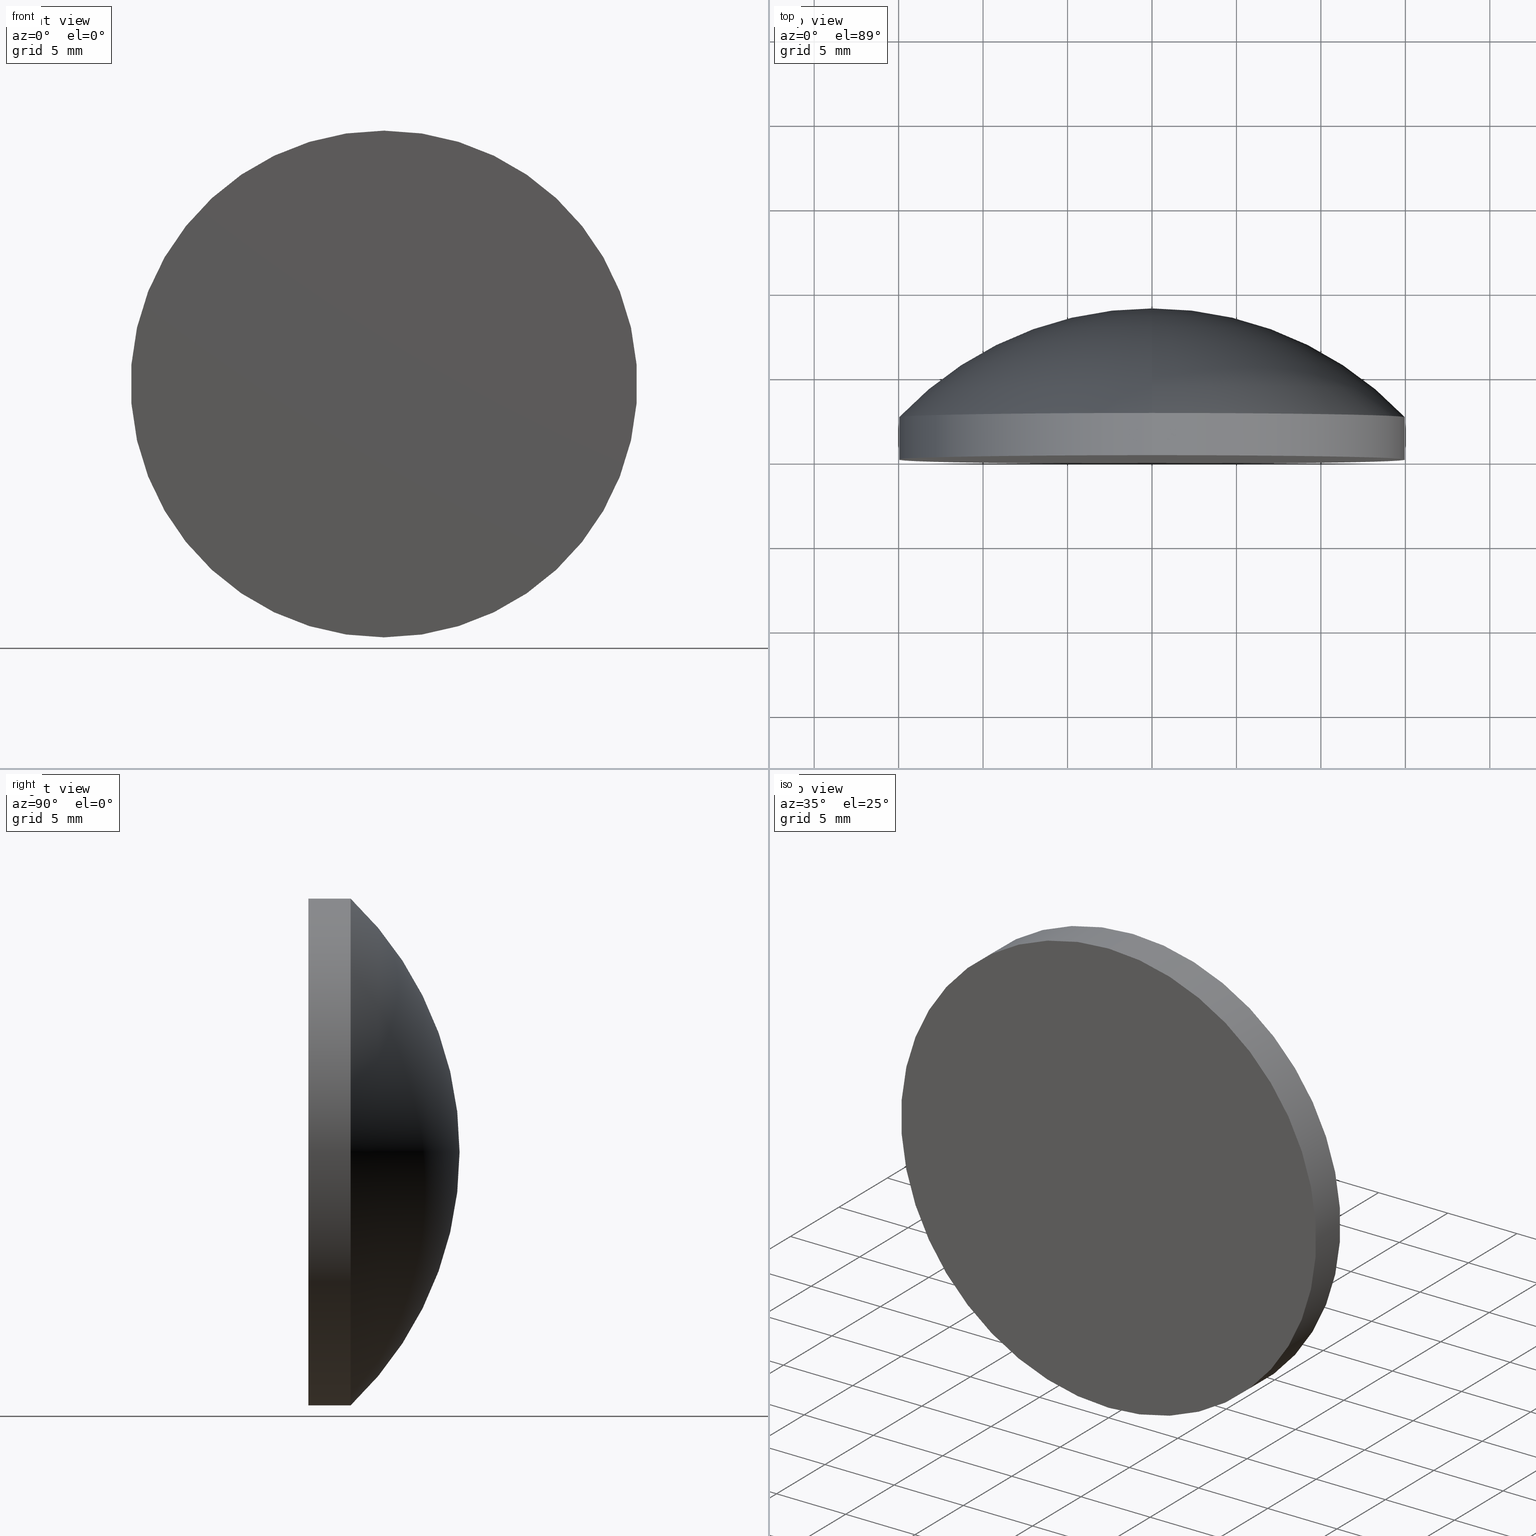
[diagram: canonical four-view strip — front | top / right | iso, engineering-drawing reading convention]
A machine part, canonical four-view strip (front | top / right | iso — engineering-drawing reading convention). The complete STEP part file that produces these views, byte-faithful:
ISO-10303-21;
HEADER;
FILE_DESCRIPTION (( 'STEP AP203' ),
    '1' );
FILE_NAME ('100548.STEP',
    '2024-05-08T10:00:32',
    ( '' ),
    ( '' ),
    'SwSTEP 2.0',
    'SolidWorks 2020',
    '' );
FILE_SCHEMA (( 'CONFIG_CONTROL_DESIGN' ));
ENDSEC;

DATA;
#1 = FACE_OUTER_BOUND ( 'NONE', #139, .T. ) ;
#2 = PERSON ( 'δָ��', 'δָ��', 'δָ��', ('δָ��'), ('δָ��'), ('δָ��') ) ;
#3 = PRODUCT_DEFINITION_FORMATION_WITH_SPECIFIED_SOURCE ( '�κ�', '', #108, .NOT_KNOWN. ) ;
#4 = APPROVAL_STATUS ( 'not_yet_approved' ) ;
#5 = AXIS2_PLACEMENT_3D ( 'NONE', #117, #156, #116 ) ;
#6 = EDGE_CURVE ( 'NONE', #123, #11, #185, .T. ) ;
#7 = CALENDAR_DATE ( 2024, 8, 5 ) ;
#8 = SECURITY_CLASSIFICATION_LEVEL ( 'unclassified' ) ;
#9 = ORIENTED_EDGE ( 'NONE', *, *, #86, .T. ) ;
#10 = SHAPE_DEFINITION_REPRESENTATION ( #153, #78 ) ;
#11 = VERTEX_POINT ( 'NONE', #183 ) ;
#12 = VERTEX_POINT ( 'NONE', #43 ) ;
#13 = AXIS2_PLACEMENT_3D ( 'NONE', #180, #58, #190 ) ;
#14 = DIRECTION ( 'NONE',  ( -1.000000000000000000, 0.000000000000000000, 0.000000000000000000 ) ) ;
#15 = CARTESIAN_POINT ( 'NONE',  ( 1.836970198721029589E-15, 2.499999999999998668, -15.00000000000000000 ) ) ;
#16 = FACE_OUTER_BOUND ( 'NONE', #88, .T. ) ;
#17 = AXIS2_PLACEMENT_3D ( 'NONE', #97, #113, #115 ) ;
#18 = DIRECTION ( 'NONE',  ( -0.000000000000000000, 1.000000000000000000, -0.000000000000000000 ) ) ;
#19 = DIRECTION ( 'NONE',  ( -0.000000000000000000, 1.000000000000000000, -0.000000000000000000 ) ) ;
#20 =( NAMED_UNIT ( * ) SI_UNIT ( $, .STERADIAN. ) SOLID_ANGLE_UNIT ( ) );
#21 = EDGE_CURVE ( 'NONE', #173, #123, #159, .T. ) ;
#22 = PERSON_AND_ORGANIZATION ( #2, #61 ) ;
#23 = CIRCLE ( 'NONE', #17, 15.00000000000000000 ) ;
#24 = CALENDAR_DATE ( 2024, 8, 5 ) ;
#25 = PRODUCT_DEFINITION ( 'δ֪', '', #3, #133 ) ;
#26 = AXIS2_PLACEMENT_3D ( 'NONE', #170, #28, #93 ) ;
#27 = PERSON_AND_ORGANIZATION_ROLE ( 'classification_officer' ) ;
#28 = DIRECTION ( 'NONE',  ( -0.000000000000000000, 1.000000000000000000, -0.000000000000000000 ) ) ;
#29 = CARTESIAN_POINT ( 'NONE',  ( 0.000000000000000000, -1.734723475976807094E-15, 0.000000000000000000 ) ) ;
#30 = AXIS2_PLACEMENT_3D ( 'NONE', #90, #87, #56 ) ;
#31 = CARTESIAN_POINT ( 'NONE',  ( 0.000000000000000000, 8.949999999999999289, 15.00000000000000000 ) ) ;
#32 = DIRECTION ( 'NONE',  ( 0.000000000000000000, -0.000000000000000000, -1.000000000000000000 ) ) ;
#33 = DATE_TIME_ROLE ( 'creation_date' ) ;
#34 = EDGE_CURVE ( 'NONE', #168, #123, #151, .T. ) ;
#35 = APPROVAL_DATE_TIME ( #53, #76 ) ;
#36 = ADVANCED_FACE ( 'NONE', ( #110 ), #171, .T. ) ;
#37 = CC_DESIGN_APPROVAL ( #198, ( #3 ) ) ;
#38 = APPROVAL_ROLE ( '' ) ;
#39 = DATE_AND_TIME ( #181, #106 ) ;
#40 = VECTOR ( 'NONE', #199, 1000.000000000000000 ) ;
#41 = ORIENTED_EDGE ( 'NONE', *, *, #118, .T. ) ;
#42 = DATE_TIME_ROLE ( 'classification_date' ) ;
#43 = CARTESIAN_POINT ( 'NONE',  ( 0.000000000000000000, -1.734723475976807094E-15, 15.00000000000000000 ) ) ;
#44 = DIRECTION ( 'NONE',  ( -0.000000000000000000, 1.000000000000000000, -0.000000000000000000 ) ) ;
#45 = AXIS2_PLACEMENT_3D ( 'NONE', #128, #161, #70 ) ;
#46 = EDGE_CURVE ( 'NONE', #123, #173, #23, .T. ) ;
#47 = ORIENTED_EDGE ( 'NONE', *, *, #52, .T. ) ;
#48 = ORIENTED_EDGE ( 'NONE', *, *, #52, .F. ) ;
#49 = CARTESIAN_POINT ( 'NONE',  ( 0.000000000000000000, 8.949999999999999289, 0.000000000000000000 ) ) ;
#50 = CARTESIAN_POINT ( 'NONE',  ( 0.000000000000000000, -9.184850993605147944E-16, 0.000000000000000000 ) ) ;
#51 = AXIS2_PLACEMENT_3D ( 'NONE', #95, #14, #85 ) ;
#52 = EDGE_CURVE ( 'NONE', #12, #168, #91, .T. ) ;
#53 = DATE_AND_TIME ( #7, #138 ) ;
#54 = PRODUCT_RELATED_PRODUCT_CATEGORY ( 'detail', '', ( #108 ) ) ;
#55 = PERSON_AND_ORGANIZATION_ROLE ( 'creator' ) ;
#56 = DIRECTION ( 'NONE',  ( 1.000000000000000000, 0.000000000000000000, 0.000000000000000000 ) ) ;
#57 = MANIFOLD_SOLID_BREP ( '��ת1', #164 ) ;
#58 = DIRECTION ( 'NONE',  ( -0.000000000000000000, 1.000000000000000000, -0.000000000000000000 ) ) ;
#59 = COORDINATED_UNIVERSAL_TIME_OFFSET ( 8, 0, .AHEAD. ) ;
#60 = APPROVAL ( #150, 'δָ��' ) ;
#61 = ORGANIZATION ( 'δָ��', 'δָ��', '' ) ;
#62 = ORIENTED_EDGE ( 'NONE', *, *, #6, .T. ) ;
#63 = CARTESIAN_POINT ( 'NONE',  ( 1.836970198721029589E-15, 8.949999999999999289, -15.00000000000000000 ) ) ;
#64 = ADVANCED_FACE ( 'NONE', ( #16 ), #103, .T. ) ;
#65 = ORIENTED_EDGE ( 'NONE', *, *, #6, .F. ) ;
#66 = ORIENTED_EDGE ( 'NONE', *, *, #21, .T. ) ;
#67 = LOCAL_TIME ( 18, 0, 32.00000000000000000, #158 ) ;
#68 = FACE_OUTER_BOUND ( 'NONE', #79, .T. ) ;
#69 = AXIS2_PLACEMENT_3D ( 'NONE', #29, #19, #141 ) ;
#70 = DIRECTION ( 'NONE',  ( 0.000000000000000000, 0.000000000000000000, 1.000000000000000000 ) ) ;
#71 = APPROVAL_STATUS ( 'not_yet_approved' ) ;
#72 = CARTESIAN_POINT ( 'NONE',  ( 1.836970198721029589E-15, -1.734723475976807094E-15, -15.00000000000000000 ) ) ;
#73 = CIRCLE ( 'NONE', #51, 20.66999999999999460 ) ;
#74 =( LENGTH_UNIT ( ) NAMED_UNIT ( * ) SI_UNIT ( .MILLI., .METRE. ) );
#75 = CC_DESIGN_APPROVAL ( #76, ( #25 ) ) ;
#76 = APPROVAL ( #71, 'δָ��' ) ;
#77 = ORIENTED_EDGE ( 'NONE', *, *, #86, .F. ) ;
#78 = ADVANCED_BREP_SHAPE_REPRESENTATION ( '100548', ( #57, #30 ), #144 ) ;
#79 = EDGE_LOOP ( 'NONE', ( #47, #172, #82, #184 ) ) ;
#80 = CC_DESIGN_PERSON_AND_ORGANIZATION_ASSIGNMENT ( #195, #27, ( #174 ) ) ;
#81 = APPROVAL_PERSON_ORGANIZATION ( #148, #76, #38 ) ;
#82 = ORIENTED_EDGE ( 'NONE', *, *, #21, .F. ) ;
#83 = AXIS2_PLACEMENT_3D ( 'NONE', #50, #84, #32 ) ;
#84 = DIRECTION ( 'NONE',  ( 0.000000000000000000, -1.000000000000000000, 0.000000000000000000 ) ) ;
#85 = DIRECTION ( 'NONE',  ( 0.000000000000000000, 0.000000000000000000, 1.000000000000000000 ) ) ;
#86 = EDGE_CURVE ( 'NONE', #173, #11, #73, .T. ) ;
#87 = DIRECTION ( 'NONE',  ( 0.000000000000000000, 0.000000000000000000, 1.000000000000000000 ) ) ;
#88 = EDGE_LOOP ( 'NONE', ( #65, #122, #9 ) ) ;
#89 =( NAMED_UNIT ( * ) PLANE_ANGLE_UNIT ( ) SI_UNIT ( $, .RADIAN. ) );
#90 = CARTESIAN_POINT ( 'NONE',  ( 0.000000000000000000, 0.000000000000000000, 0.000000000000000000 ) ) ;
#91 = CIRCLE ( 'NONE', #69, 15.00000000000000000 ) ;
#92 = DIRECTION ( 'NONE',  ( 1.000000000000000000, 0.000000000000000000, 1.224646799147353207E-16 ) ) ;
#93 = DIRECTION ( 'NONE',  ( 0.000000000000000000, 0.000000000000000000, 1.000000000000000000 ) ) ;
#94 = ORIENTED_EDGE ( 'NONE', *, *, #186, .F. ) ;
#95 = CARTESIAN_POINT ( 'NONE',  ( 0.000000000000000000, -11.71999995591560584, -0.001349981043710993256 ) ) ;
#96 = CC_DESIGN_DATE_AND_TIME_ASSIGNMENT ( #39, #42, ( #174 ) ) ;
#97 = CARTESIAN_POINT ( 'NONE',  ( 0.000000000000000000, 2.499999999999998668, 0.000000000000000000 ) ) ;
#98 = DIRECTION ( 'NONE',  ( -0.000000000000000000, 1.000000000000000000, -0.000000000000000000 ) ) ;
#99 = VECTOR ( 'NONE', #44, 1000.000000000000000 ) ;
#100 = APPROVAL_ROLE ( '' ) ;
#101 = PERSON_AND_ORGANIZATION ( #2, #61 ) ;
#102 = ORIENTED_EDGE ( 'NONE', *, *, #186, .T. ) ;
#103 = TOROIDAL_SURFACE ( 'NONE', #140, -0.001349981043710993256, 20.66999999999999815 ) ;
#104 = PERSON_AND_ORGANIZATION ( #2, #61 ) ;
#105 = PERSON_AND_ORGANIZATION ( #2, #61 ) ;
#106 = LOCAL_TIME ( 18, 0, 32.00000000000000000, #59 ) ;
#107 = DATE_AND_TIME ( #134, #177 ) ;
#108 = PRODUCT ( '100548', '100548', '', ( #179 ) ) ;
#109 = PERSON_AND_ORGANIZATION ( #2, #61 ) ;
#110 = FACE_OUTER_BOUND ( 'NONE', #111, .T. ) ;
#111 = EDGE_LOOP ( 'NONE', ( #196, #102, #41, #135 ) ) ;
#112 = ADVANCED_FACE ( 'NONE', ( #201 ), #154, .T. ) ;
#113 = DIRECTION ( 'NONE',  ( -0.000000000000000000, 1.000000000000000000, -0.000000000000000000 ) ) ;
#114 = CC_DESIGN_PERSON_AND_ORGANIZATION_ASSIGNMENT ( #22, #55, ( #3 ) ) ;
#115 = DIRECTION ( 'NONE',  ( 0.000000000000000000, 0.000000000000000000, 1.000000000000000000 ) ) ;
#116 = DIRECTION ( 'NONE',  ( 0.000000000000000000, 0.000000000000000000, 1.000000000000000000 ) ) ;
#117 = CARTESIAN_POINT ( 'NONE',  ( 0.000000000000000000, 8.949999999999999289, 0.000000000000000000 ) ) ;
#118 = EDGE_CURVE ( 'NONE', #12, #173, #200, .T. ) ;
#119 = PERSON_AND_ORGANIZATION_ROLE ( 'design_owner' ) ;
#120 = PERSON_AND_ORGANIZATION_ROLE ( 'design_supplier' ) ;
#121 = CIRCLE ( 'NONE', #45, 15.00000000000000000 ) ;
#122 = ORIENTED_EDGE ( 'NONE', *, *, #46, .T. ) ;
#123 = VERTEX_POINT ( 'NONE', #15 ) ;
#124 = APPROVAL_PERSON_ORGANIZATION ( #109, #60, #136 ) ;
#125 = CC_DESIGN_DATE_AND_TIME_ASSIGNMENT ( #176, #33, ( #25 ) ) ;
#126 = AXIS2_PLACEMENT_3D ( 'NONE', #49, #98, #162 ) ;
#127 = CYLINDRICAL_SURFACE ( 'NONE', #126, 15.00000000000000000 ) ;
#128 = CARTESIAN_POINT ( 'NONE',  ( 0.000000000000000000, -1.734723475976807094E-15, 0.000000000000000000 ) ) ;
#129 = CC_DESIGN_PERSON_AND_ORGANIZATION_ASSIGNMENT ( #194, #178, ( #25 ) ) ;
#130 = APPLICATION_PROTOCOL_DEFINITION ( 'international standard', 'config_control_design', 1994, #169 ) ;
#131 = APPLICATION_PROTOCOL_DEFINITION ( 'international standard', 'config_control_design', 1994, #189 ) ;
#132 = CARTESIAN_POINT ( 'NONE',  ( 0.000000000000000000, 2.499999999999998668, 15.00000000000000000 ) ) ;
#133 = DESIGN_CONTEXT ( 'detailed design', #189, 'design' ) ;
#134 = CALENDAR_DATE ( 2024, 8, 5 ) ;
#135 = ORIENTED_EDGE ( 'NONE', *, *, #46, .F. ) ;
#136 = APPROVAL_ROLE ( '' ) ;
#137 = CARTESIAN_POINT ( 'NONE',  ( -1.653249964090270865E-19, -11.71999995591560584, 0.001349981043710993256 ) ) ;
#138 = LOCAL_TIME ( 18, 0, 32.00000000000000000, #145 ) ;
#139 = EDGE_LOOP ( 'NONE', ( #66, #62, #77 ) ) ;
#140 = AXIS2_PLACEMENT_3D ( 'NONE', #142, #18, #187 ) ;
#141 = DIRECTION ( 'NONE',  ( 0.000000000000000000, 0.000000000000000000, 1.000000000000000000 ) ) ;
#142 = CARTESIAN_POINT ( 'NONE',  ( 0.000000000000000000, -11.71999995591560584, 0.000000000000000000 ) ) ;
#143 = ADVANCED_FACE ( 'NONE', ( #68 ), #127, .T. ) ;
#144 =( GEOMETRIC_REPRESENTATION_CONTEXT ( 3 ) GLOBAL_UNCERTAINTY_ASSIGNED_CONTEXT ( ( #163 ) ) GLOBAL_UNIT_ASSIGNED_CONTEXT ( ( #74, #89, #20 ) ) REPRESENTATION_CONTEXT ( 'NONE', 'WORKASPACE' ) );
#145 = COORDINATED_UNIVERSAL_TIME_OFFSET ( 8, 0, .AHEAD. ) ;
#146 = APPROVAL_PERSON_ORGANIZATION ( #101, #198, #100 ) ;
#147 = APPROVAL_DATE_TIME ( #157, #198 ) ;
#148 = PERSON_AND_ORGANIZATION ( #2, #61 ) ;
#149 = DIRECTION ( 'NONE',  ( 1.224646799147353454E-16, 0.000000000000000000, -1.000000000000000000 ) ) ;
#150 = APPROVAL_STATUS ( 'not_yet_approved' ) ;
#151 = LINE ( 'NONE', #63, #99 ) ;
#152 = CC_DESIGN_PERSON_AND_ORGANIZATION_ASSIGNMENT ( #104, #119, ( #108 ) ) ;
#153 = PRODUCT_DEFINITION_SHAPE ( 'NONE', 'NONE',  #25 ) ;
#154 = PLANE ( 'NONE',  #83 ) ;
#155 = CC_DESIGN_SECURITY_CLASSIFICATION ( #174, ( #3 ) ) ;
#156 = DIRECTION ( 'NONE',  ( -0.000000000000000000, 1.000000000000000000, -0.000000000000000000 ) ) ;
#157 = DATE_AND_TIME ( #24, #67 ) ;
#158 = COORDINATED_UNIVERSAL_TIME_OFFSET ( 8, 0, .AHEAD. ) ;
#159 = CIRCLE ( 'NONE', #26, 15.00000000000000000 ) ;
#160 = CALENDAR_DATE ( 2024, 8, 5 ) ;
#161 = DIRECTION ( 'NONE',  ( -0.000000000000000000, 1.000000000000000000, -0.000000000000000000 ) ) ;
#162 = DIRECTION ( 'NONE',  ( 0.000000000000000000, 0.000000000000000000, 1.000000000000000000 ) ) ;
#163 = UNCERTAINTY_MEASURE_WITH_UNIT (LENGTH_MEASURE( 1.000000000000000082E-05 ), #74, 'distance_accuracy_value', 'NONE');
#164 = CLOSED_SHELL ( 'NONE', ( #143, #193, #64, #112, #36 ) ) ;
#165 = APPROVAL_DATE_TIME ( #107, #60 ) ;
#166 = CC_DESIGN_PERSON_AND_ORGANIZATION_ASSIGNMENT ( #105, #120, ( #3 ) ) ;
#167 = COORDINATED_UNIVERSAL_TIME_OFFSET ( 8, 0, .AHEAD. ) ;
#168 = VERTEX_POINT ( 'NONE', #72 ) ;
#169 = APPLICATION_CONTEXT ( 'configuration controlled 3d designs of mechanical parts and assemblies' ) ;
#170 = CARTESIAN_POINT ( 'NONE',  ( 0.000000000000000000, 2.499999999999998668, 0.000000000000000000 ) ) ;
#171 = CYLINDRICAL_SURFACE ( 'NONE', #5, 15.00000000000000000 ) ;
#172 = ORIENTED_EDGE ( 'NONE', *, *, #34, .T. ) ;
#173 = VERTEX_POINT ( 'NONE', #132 ) ;
#174 = SECURITY_CLASSIFICATION ( '', '', #8 ) ;
#175 = AXIS2_PLACEMENT_3D ( 'NONE', #137, #92, #149 ) ;
#176 = DATE_AND_TIME ( #160, #188 ) ;
#177 = LOCAL_TIME ( 18, 0, 32.00000000000000000, #167 ) ;
#178 = PERSON_AND_ORGANIZATION_ROLE ( 'creator' ) ;
#179 = MECHANICAL_CONTEXT ( 'NONE', #169, 'mechanical' ) ;
#180 = CARTESIAN_POINT ( 'NONE',  ( 0.000000000000000000, -11.71999995591560584, 0.000000000000000000 ) ) ;
#181 = CALENDAR_DATE ( 2024, 8, 5 ) ;
#182 = EDGE_LOOP ( 'NONE', ( #48, #94 ) ) ;
#183 = CARTESIAN_POINT ( 'NONE',  ( 0.000000000000000000, 8.949999999999999289, 0.000000000000000000 ) ) ;
#184 = ORIENTED_EDGE ( 'NONE', *, *, #118, .F. ) ;
#185 = CIRCLE ( 'NONE', #175, 20.66999999999999460 ) ;
#186 = EDGE_CURVE ( 'NONE', #168, #12, #121, .T. ) ;
#187 = DIRECTION ( 'NONE',  ( 0.000000000000000000, 0.000000000000000000, 1.000000000000000000 ) ) ;
#188 = LOCAL_TIME ( 18, 0, 32.00000000000000000, #191 ) ;
#189 = APPLICATION_CONTEXT ( 'configuration controlled 3d designs of mechanical parts and assemblies' ) ;
#190 = DIRECTION ( 'NONE',  ( 0.000000000000000000, 0.000000000000000000, 1.000000000000000000 ) ) ;
#191 = COORDINATED_UNIVERSAL_TIME_OFFSET ( 8, 0, .AHEAD. ) ;
#192 = TOROIDAL_SURFACE ( 'NONE', #13, -0.001349981043710993256, 20.66999999999999815 ) ;
#193 = ADVANCED_FACE ( 'NONE', ( #1 ), #192, .T. ) ;
#194 = PERSON_AND_ORGANIZATION ( #2, #61 ) ;
#195 = PERSON_AND_ORGANIZATION ( #2, #61 ) ;
#196 = ORIENTED_EDGE ( 'NONE', *, *, #34, .F. ) ;
#197 = CC_DESIGN_APPROVAL ( #60, ( #174 ) ) ;
#198 = APPROVAL ( #4, 'δָ��' ) ;
#199 = DIRECTION ( 'NONE',  ( -0.000000000000000000, 1.000000000000000000, -0.000000000000000000 ) ) ;
#200 = LINE ( 'NONE', #31, #40 ) ;
#201 = FACE_OUTER_BOUND ( 'NONE', #182, .T. ) ;
ENDSEC;
END-ISO-10303-21;
